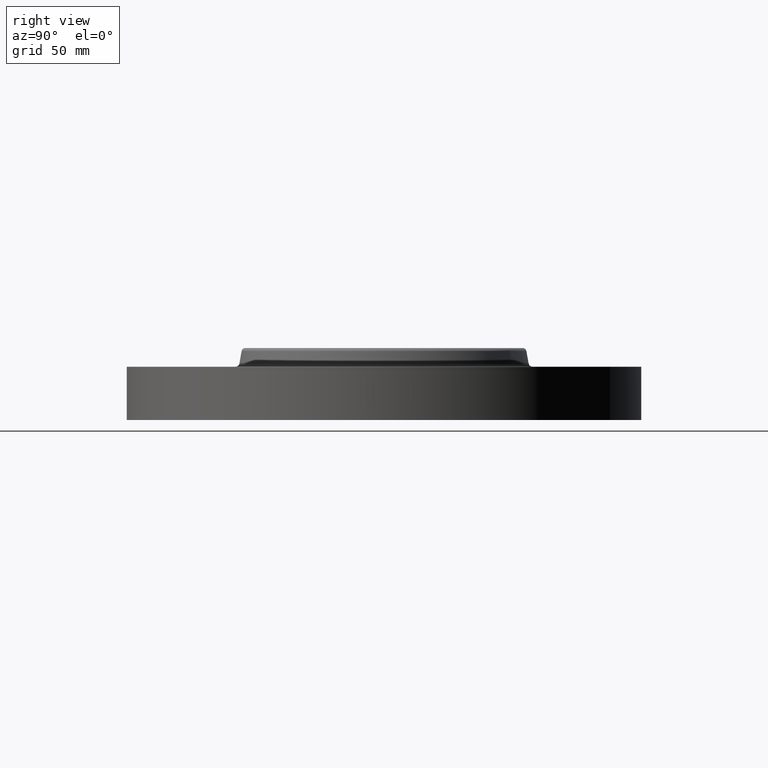
[diagram: clean part render]
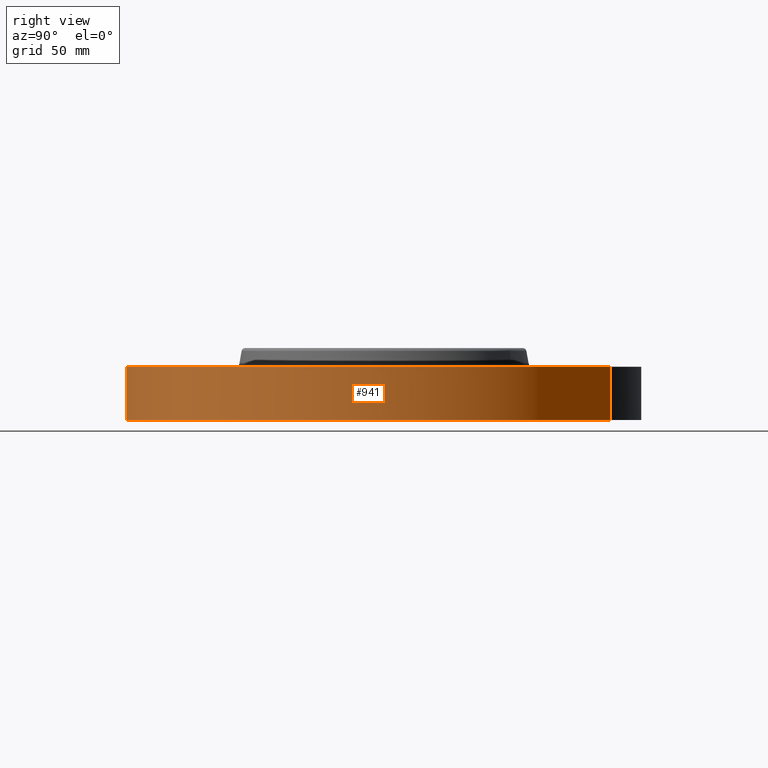
[diagram: same view with one face highlighted and labeled with its STEP entity id]
A machine part, right view. The second image highlights one B-rep face of the part: STEP entity #941.
In plain terms, the highlighted cylindrical surface (partial cylindrical patch) has radius 107.95 mm, axis along (0, 0, -1).
Its self-contained STEP definition (entity closure, byte-faithful):
#42=AXIS2_PLACEMENT_3D('Circle Axis2P3D',#40,#41,$) ;
#902=AXIS2_PLACEMENT_3D('Cylinder Axis2P3D',#899,#900,#901) ;
#932=AXIS2_PLACEMENT_3D('Circle Axis2P3D',#930,#931,$) ;
#40=CARTESIAN_POINT('Axis2P3D Location',(0.,0.,0.)) ;
#44=CARTESIAN_POINT('Vertex',(2.03755853908,3.72972588805,4.19611851827E-016)) ;
#46=CARTESIAN_POINT('Vertex',(-2.03755853908,-3.72972588805,4.19611851827E-016)) ;
#899=CARTESIAN_POINT('Axis2P3D Location',(0.,0.,0.595000000002)) ;
#904=CARTESIAN_POINT('Line Origine',(-2.03755853908,-3.72972588805,0.440000000002)) ;
#908=CARTESIAN_POINT('Vertex',(-2.03755853908,-3.72972588805,0.880000000004)) ;
#915=CARTESIAN_POINT('Vertex',(2.03755853908,3.72972588805,0.880000000004)) ;
#918=CARTESIAN_POINT('Line Origine',(2.03755853908,3.72972588805,0.440000000002)) ;
#930=CARTESIAN_POINT('Axis2P3D Location',(0.,0.,0.880000000004)) ;
#41=DIRECTION('Axis2P3D Direction',(0.,0.,-0.0393700787402)) ;
#900=DIRECTION('Axis2P3D Direction',(0.,0.,-0.0393700787402)) ;
#901=DIRECTION('Axis2P3D XDirection',(0.0188750212049,0.0345504945626,0.)) ;
#905=DIRECTION('Vector Direction',(0.,0.,-0.0393700787402)) ;
#919=DIRECTION('Vector Direction',(0.,0.,-0.0393700787402)) ;
#931=DIRECTION('Axis2P3D Direction',(0.,0.,-0.0393700787402)) ;
#906=VECTOR('Line Direction',#905,0.0393700787402) ;
#920=VECTOR('Line Direction',#919,0.0393700787402) ;
#936=ORIENTED_EDGE('',*,*,#48,.F.) ;
#937=ORIENTED_EDGE('',*,*,#922,.T.) ;
#938=ORIENTED_EDGE('',*,*,#934,.T.) ;
#939=ORIENTED_EDGE('',*,*,#910,.F.) ;
#941=ADVANCED_FACE('PartBody',(#940),#903,.T.) ;
#43=CIRCLE('generated circle',#42,4.25000000002) ;
#933=CIRCLE('generated circle',#932,4.25000000002) ;
#903=CYLINDRICAL_SURFACE('generated cylinder',#902,4.25000000002) ;
#48=EDGE_CURVE('',#45,#47,#43,.T.) ;
#910=EDGE_CURVE('',#47,#909,#907,.F.) ;
#922=EDGE_CURVE('',#45,#916,#921,.F.) ;
#934=EDGE_CURVE('',#916,#909,#933,.T.) ;
#935=EDGE_LOOP('',(#936,#937,#938,#939)) ;
#940=FACE_OUTER_BOUND('',#935,.T.) ;
#907=LINE('Line',#904,#906) ;
#921=LINE('Line',#918,#920) ;
#45=VERTEX_POINT('',#44) ;
#47=VERTEX_POINT('',#46) ;
#909=VERTEX_POINT('',#908) ;
#916=VERTEX_POINT('',#915) ;